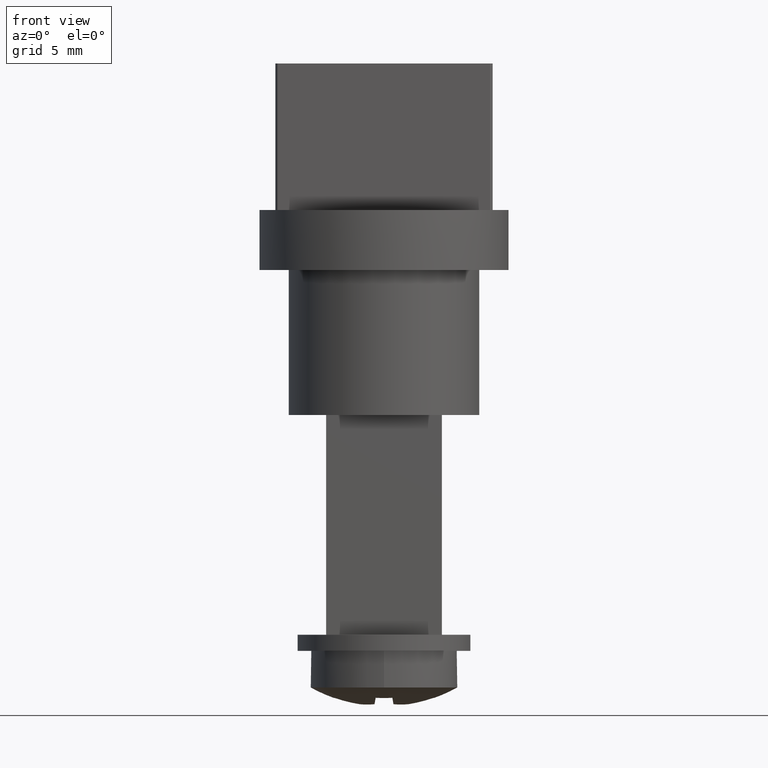
[diagram: clean part render]
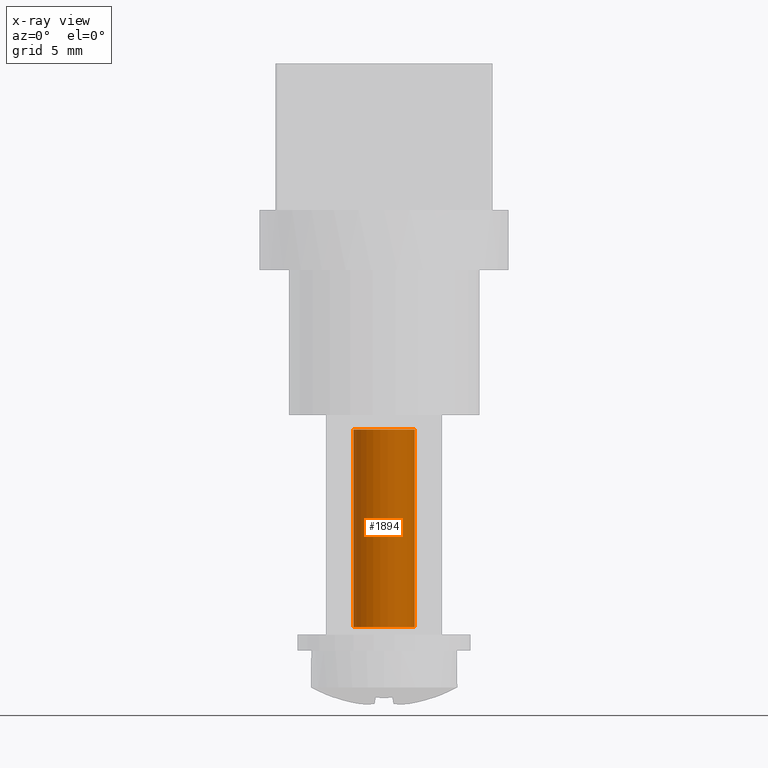
[diagram: x-ray — body ghosted, one internal face saturated and labeled with its STEP entity id]
A machine part, front view, then the same camera in x-ray: the body is ghosted and one INTERNAL B-rep face — a face not visible from any outside direction — is saturated and labeled: STEP entity #1894.
In plain terms, the highlighted cylindrical surface (edge-blend (fillet) strip) has radius 2.1 mm, axis along (-0, -0, -1).
Its self-contained STEP definition (entity closure, byte-faithful):
#16 = ORIENTED_EDGE ( 'NONE', *, *, #2240, .T. ) ;
#188 = CARTESIAN_POINT ( 'NONE',  ( 2.099999999999996980, 2.571758278209438013E-16, -7.999999999999996447 ) ) ;
#414 = CIRCLE ( 'NONE', #7627, 2.099999999999996980 ) ;
#603 = DIRECTION ( 'NONE',  ( -0.000000000000000000, -0.000000000000000000, -1.000000000000000000 ) ) ;
#835 = VECTOR ( 'NONE', #9955, 1000.000000000000000 ) ;
#923 = DIRECTION ( 'NONE',  ( -0.000000000000000000, -0.000000000000000000, -1.000000000000000000 ) ) ;
#1116 = AXIS2_PLACEMENT_3D ( 'NONE', #11460, #603, #8172 ) ;
#1119 = DIRECTION ( 'NONE',  ( -1.000000000000000000, 0.000000000000000000, 0.000000000000000000 ) ) ;
#1894 = ADVANCED_FACE ( 'NONE', ( #3225 ), #3436, .F. ) ;
#2240 = EDGE_CURVE ( 'NONE', #12668, #15715, #10741, .T. ) ;
#2456 = CARTESIAN_POINT ( 'NONE',  ( -2.099999999999992983, 0.000000000000000000, -22.00000000000000000 ) ) ;
#2702 = CARTESIAN_POINT ( 'NONE',  ( 2.099999999999992983, 2.571758278209433082E-16, -22.00000000000000000 ) ) ;
#2981 = ORIENTED_EDGE ( 'NONE', *, *, #8336, .F. ) ;
#3225 = FACE_OUTER_BOUND ( 'NONE', #16045, .T. ) ;
#3436 = CYLINDRICAL_SURFACE ( 'NONE', #1116, 2.099999999999992983 ) ;
#4231 = EDGE_CURVE ( 'NONE', #10814, #8594, #7123, .T. ) ;
#5214 = VECTOR ( 'NONE', #7994, 1000.000000000000000 ) ;
#5742 = CIRCLE ( 'NONE', #15176, 2.099999999999992983 ) ;
#6001 = ORIENTED_EDGE ( 'NONE', *, *, #8804, .T. ) ;
#6271 = CARTESIAN_POINT ( 'NONE',  ( 0.000000000000000000, 0.000000000000000000, -21.49999999999999289 ) ) ;
#7123 = LINE ( 'NONE', #2456, #835 ) ;
#7627 = AXIS2_PLACEMENT_3D ( 'NONE', #14439, #923, #9548 ) ;
#7994 = DIRECTION ( 'NONE',  ( -0.000000000000000000, -0.000000000000000000, -1.000000000000000000 ) ) ;
#8172 = DIRECTION ( 'NONE',  ( -1.000000000000000000, 0.000000000000000000, 0.000000000000000000 ) ) ;
#8336 = EDGE_CURVE ( 'NONE', #12668, #10814, #414, .T. ) ;
#8348 = CARTESIAN_POINT ( 'NONE',  ( -2.099999999999996980, 0.000000000000000000, -7.999999999999996447 ) ) ;
#8594 = VERTEX_POINT ( 'NONE', #15254 ) ;
#8804 = EDGE_CURVE ( 'NONE', #15715, #8594, #5742, .T. ) ;
#9548 = DIRECTION ( 'NONE',  ( -1.000000000000000000, 0.000000000000000000, 0.000000000000000000 ) ) ;
#9955 = DIRECTION ( 'NONE',  ( -0.000000000000000000, -0.000000000000000000, -1.000000000000000000 ) ) ;
#10741 = LINE ( 'NONE', #2702, #5214 ) ;
#10814 = VERTEX_POINT ( 'NONE', #8348 ) ;
#11309 = DIRECTION ( 'NONE',  ( 0.000000000000000000, 0.000000000000000000, -1.000000000000000000 ) ) ;
#11460 = CARTESIAN_POINT ( 'NONE',  ( 0.000000000000000000, 0.000000000000000000, -22.00000000000000000 ) ) ;
#12668 = VERTEX_POINT ( 'NONE', #188 ) ;
#13249 = CARTESIAN_POINT ( 'NONE',  ( 2.099999999999992983, 2.571758278209433082E-16, -21.49999999999999289 ) ) ;
#14439 = CARTESIAN_POINT ( 'NONE',  ( 0.000000000000000000, 0.000000000000000000, -7.999999999999996447 ) ) ;
#15085 = ORIENTED_EDGE ( 'NONE', *, *, #4231, .F. ) ;
#15176 = AXIS2_PLACEMENT_3D ( 'NONE', #6271, #11309, #1119 ) ;
#15254 = CARTESIAN_POINT ( 'NONE',  ( -2.099999999999992983, 0.000000000000000000, -21.49999999999999289 ) ) ;
#15715 = VERTEX_POINT ( 'NONE', #13249 ) ;
#16045 = EDGE_LOOP ( 'NONE', ( #2981, #16, #6001, #15085 ) ) ;